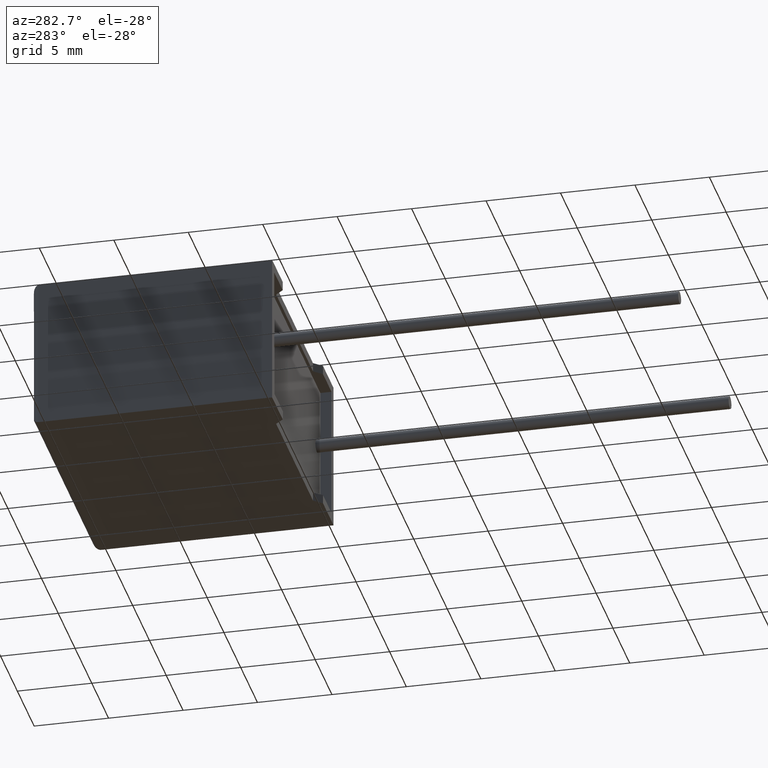
[diagram: clean part render]
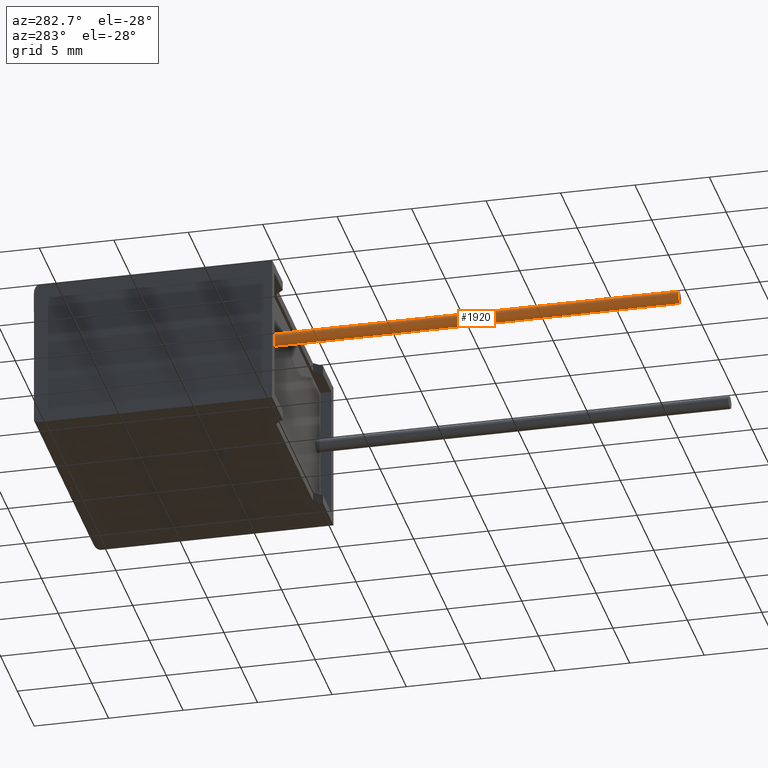
[diagram: same view with one face highlighted and labeled with its STEP entity id]
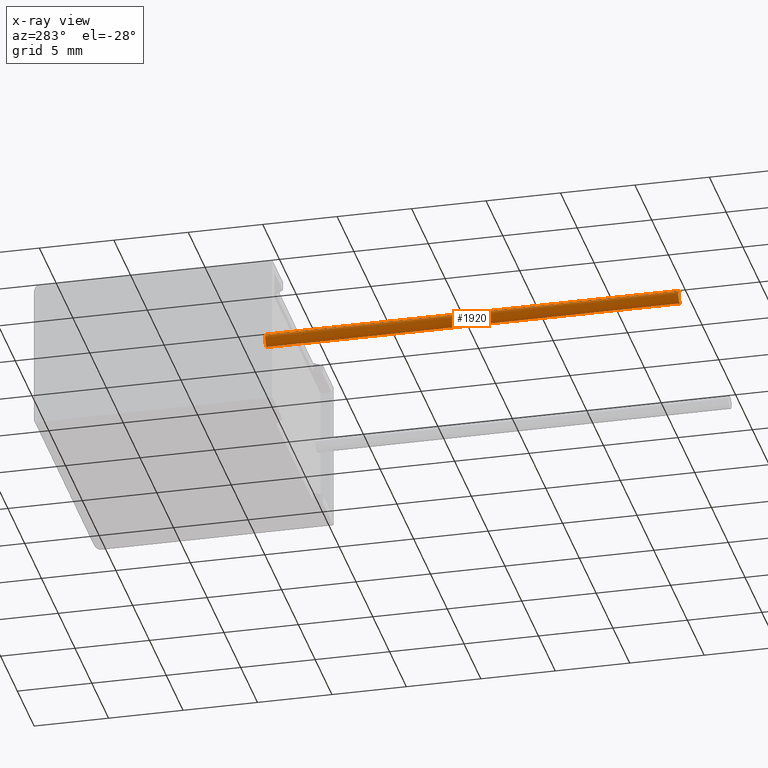
[diagram: x-ray of the same camera — body ghosted, the highlighted face saturated]
A machine part, auxiliary view. The second image highlights one B-rep face of the part: STEP entity #1920.
The next image is the same camera in x-ray: the body ghosted, the highlighted face saturated — about 0% of this face is hidden behind the body in this view.
In plain terms, the highlighted cylindrical surface (edge-blend (fillet) strip) has radius 0.425 mm, axis along (-0, 1, -0).
Its self-contained STEP definition (entity closure, byte-faithful):
#33 = CARTESIAN_POINT ( 'NONE',  ( 1.650000000000000355, -27.00000000000000000, 5.524999999999999467 ) ) ;
#105 = DIRECTION ( 'NONE',  ( 0.000000000000000000, -1.000000000000000000, 0.000000000000000000 ) ) ;
#297 = ORIENTED_EDGE ( 'NONE', *, *, #1424, .F. ) ;
#327 = CIRCLE ( 'NONE', #2247, 0.4250000000000000444 ) ;
#486 = AXIS2_PLACEMENT_3D ( 'NONE', #2681, #105, #1026 ) ;
#623 = CARTESIAN_POINT ( 'NONE',  ( 1.650000000000000355, -27.00000000000000000, 4.674999999999999822 ) ) ;
#684 = VERTEX_POINT ( 'NONE', #959 ) ;
#691 = DIRECTION ( 'NONE',  ( -0.000000000000000000, 1.000000000000000000, -0.000000000000000000 ) ) ;
#726 = EDGE_CURVE ( 'NONE', #684, #1978, #2138, .T. ) ;
#787 = CARTESIAN_POINT ( 'NONE',  ( 1.650000000000000355, -27.00000000000000000, 4.674999999999999822 ) ) ;
#860 = DIRECTION ( 'NONE',  ( 0.000000000000000000, 0.000000000000000000, -1.000000000000000000 ) ) ;
#908 = EDGE_LOOP ( 'NONE', ( #2894, #297, #2311, #1888 ) ) ;
#959 = CARTESIAN_POINT ( 'NONE',  ( 1.650000000000000355, -27.00000000000000000, 5.524999999999999467 ) ) ;
#1001 = FACE_OUTER_BOUND ( 'NONE', #908, .T. ) ;
#1026 = DIRECTION ( 'NONE',  ( 0.000000000000000000, 0.000000000000000000, -1.000000000000000000 ) ) ;
#1148 = EDGE_CURVE ( 'NONE', #2564, #2153, #2727, .T. ) ;
#1162 = CARTESIAN_POINT ( 'NONE',  ( 1.650000000000000355, -27.00000000000000000, 5.099999999999999645 ) ) ;
#1166 = DIRECTION ( 'NONE',  ( 0.000000000000000000, -1.000000000000000000, 0.000000000000000000 ) ) ;
#1184 = DIRECTION ( 'NONE',  ( 0.000000000000000000, 0.000000000000000000, 1.000000000000000000 ) ) ;
#1424 = EDGE_CURVE ( 'NONE', #684, #2564, #327, .T. ) ;
#1559 = CIRCLE ( 'NONE', #486, 0.4250000000000000444 ) ;
#1577 = CARTESIAN_POINT ( 'NONE',  ( 1.650000000000000355, 0.7500000000000000000, 5.524999999999999467 ) ) ;
#1686 = EDGE_CURVE ( 'NONE', #1978, #2153, #1559, .T. ) ;
#1808 = DIRECTION ( 'NONE',  ( -0.000000000000000000, 1.000000000000000000, -0.000000000000000000 ) ) ;
#1888 = ORIENTED_EDGE ( 'NONE', *, *, #1686, .T. ) ;
#1920 = ADVANCED_FACE ( 'NONE', ( #1001 ), #2572, .T. ) ;
#1978 = VERTEX_POINT ( 'NONE', #1577 ) ;
#2138 = LINE ( 'NONE', #33, #2539 ) ;
#2153 = VERTEX_POINT ( 'NONE', #2735 ) ;
#2247 = AXIS2_PLACEMENT_3D ( 'NONE', #2365, #1166, #860 ) ;
#2311 = ORIENTED_EDGE ( 'NONE', *, *, #726, .T. ) ;
#2365 = CARTESIAN_POINT ( 'NONE',  ( 1.650000000000000355, -27.00000000000000000, 5.099999999999999645 ) ) ;
#2385 = DIRECTION ( 'NONE',  ( -0.000000000000000000, 1.000000000000000000, -0.000000000000000000 ) ) ;
#2445 = AXIS2_PLACEMENT_3D ( 'NONE', #1162, #691, #1184 ) ;
#2539 = VECTOR ( 'NONE', #2385, 1000.000000000000000 ) ;
#2564 = VERTEX_POINT ( 'NONE', #623 ) ;
#2572 = CYLINDRICAL_SURFACE ( 'NONE', #2445, 0.4250000000000000444 ) ;
#2681 = CARTESIAN_POINT ( 'NONE',  ( 1.650000000000000355, 0.7500000000000000000, 5.099999999999999645 ) ) ;
#2692 = VECTOR ( 'NONE', #1808, 1000.000000000000000 ) ;
#2727 = LINE ( 'NONE', #787, #2692 ) ;
#2735 = CARTESIAN_POINT ( 'NONE',  ( 1.650000000000000355, 0.7500000000000000000, 4.674999999999999822 ) ) ;
#2894 = ORIENTED_EDGE ( 'NONE', *, *, #1148, .F. ) ;